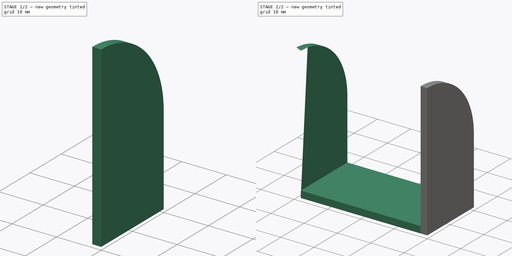
[diagram: build sequence overview — one tinted view per stage of 2, left to right]
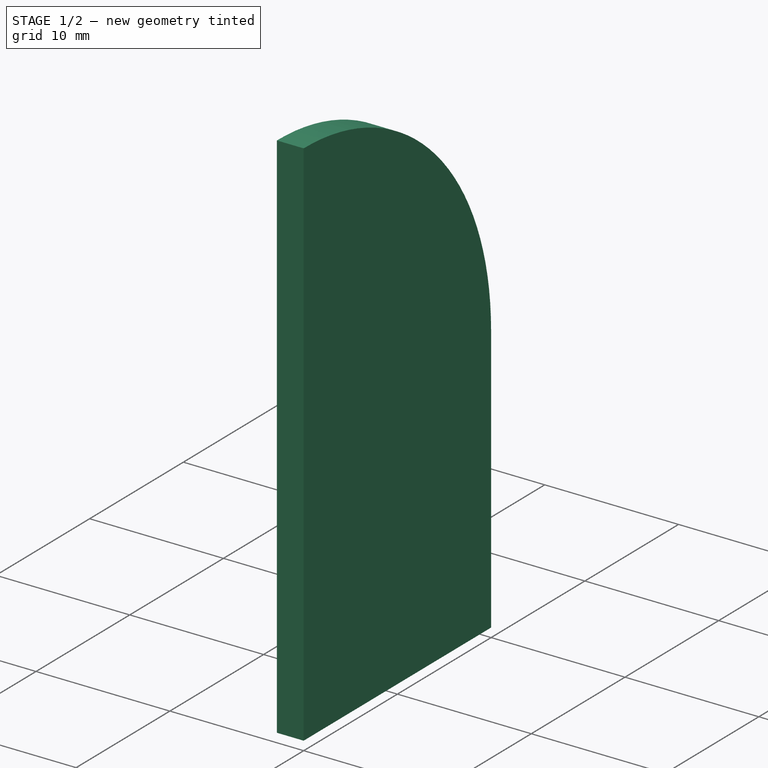
[diagram: stage 1 of 2 — iso view after this stage's code; geometry added in this stage tinted green]
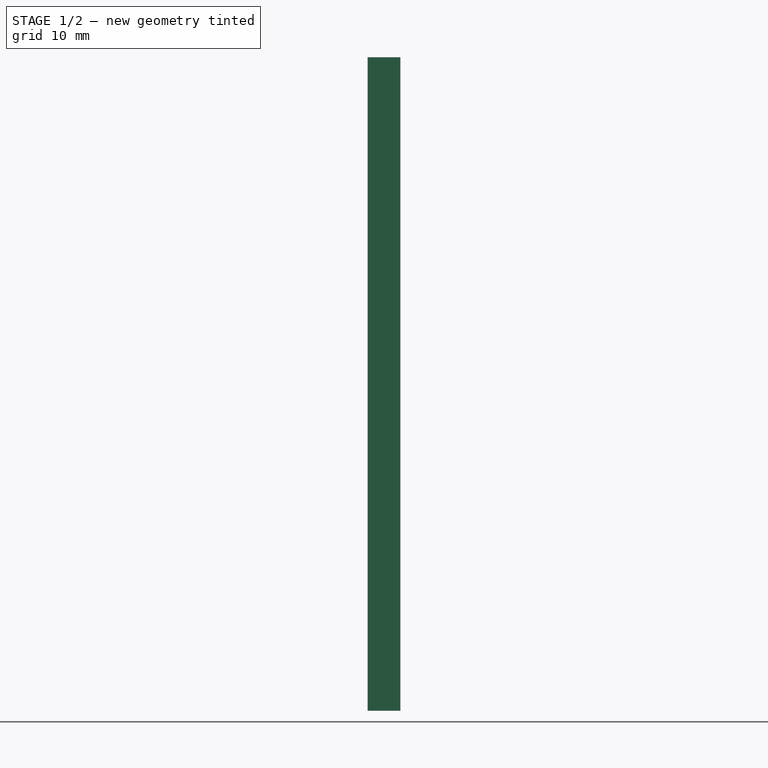
[diagram: stage 1 of 2 — front view after this stage's code; geometry added in this stage tinted green]
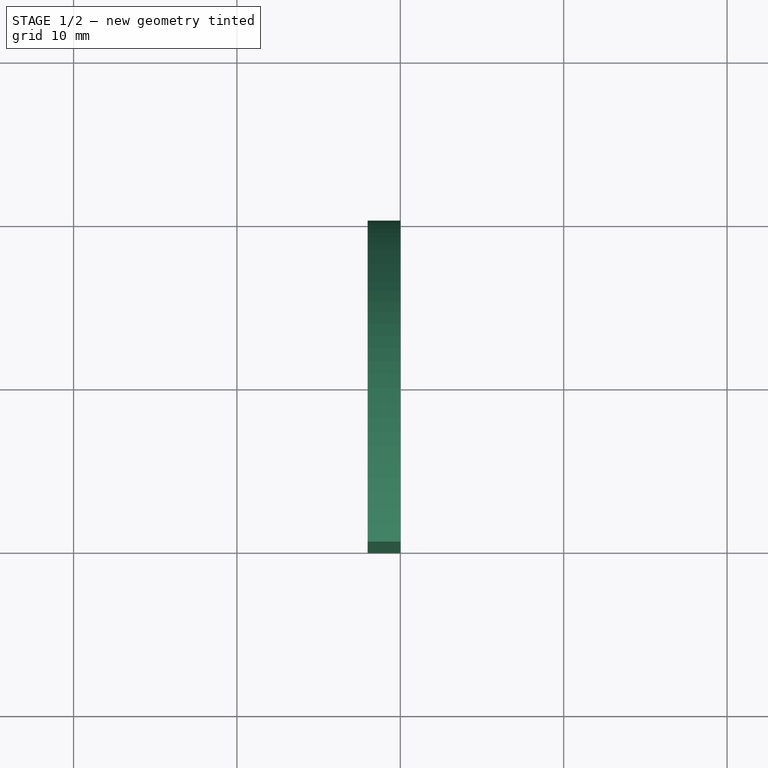
[diagram: stage 1 of 2 — top view after this stage's code; geometry added in this stage tinted green]
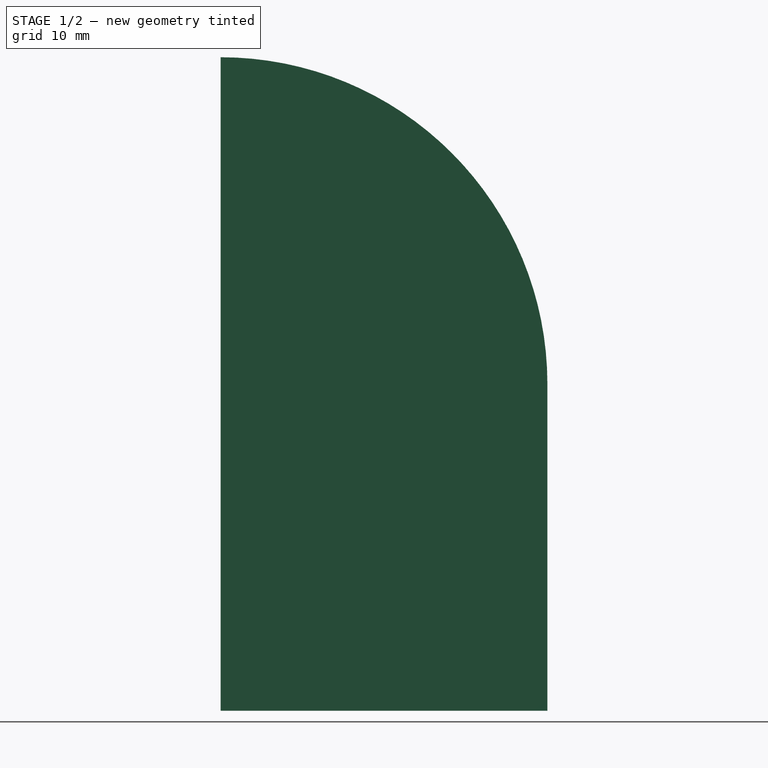
[diagram: stage 1 of 2 — right view after this stage's code; geometry added in this stage tinted green]
FCSTD DOCUMENT  (FreeCAD 0.18R4 (GitTag))
Label: FanMount
License: All rights reserved
LicenseURL: http://en.wikipedia.org/wiki/All_rights_reserved
objects: Sketcher::SketchObject×5, Part::Extrusion×3, Spreadsheet::Sheet×1, PartDesign::Pad×1, PartDesign::Body×1
note: 11 computed .brp shape members not serialized (recipe doc carries the construction recipe); baked Part::Feature solids carry a one-line shape summary decoded from their .brp

FEATURE [Sketcher::SketchObject] Sketch
  MapMode = 5
  Placement = pos=(0,0,0) rot=(1,0,0;1.5708rad)
  Support = -> [XZ_Plane]
  expr: Constraints[26] = parameters.FanOpeningOffset
  expr: Constraints[19] = parameters.ScrewToSide
  expr: Constraints[23] = parameters.ScrewToSide
  expr: Constraints[24] = parameters.ScrewToSide
  expr: Constraints[20] = parameters.ScrewToSide
  expr: Constraints[15] = Spreadsheet001.M3ThreadRadius
  expr: Constraints[14] = parameters.ScrewToSide
  expr: Constraints[22] = parameters.ScrewToSide
  expr: Constraints[9] = parameters.FaceWidth
  expr: Constraints[17] = Spreadsheet001.M3ThreadRadius
  expr: Constraints[18] = Spreadsheet001.M3ThreadRadius
  expr: Constraints[12] = parameters.FanOpeningRadius
  expr: Constraints[11] = parameters.FaceLength / 2
  expr: Constraints[10] = parameters.FaceWidth / 2
  expr: Constraints[13] = parameters.ScrewToSide
  expr: Constraints[25] = parameters.FanOpeningOffset
  expr: Constraints[21] = parameters.ScrewToSide
  expr: Constraints[16] = Spreadsheet001.M3ThreadRadius
  expr: Constraints[8] = parameters.FaceLength
  sketch-geometry (9):
    g0: LineSegment StartX=-20 StartY=20 StartZ=0 EndX=20 EndY=20 EndZ=0
    g1: LineSegment StartX=20 StartY=20 StartZ=0 EndX=20 EndY=-20 EndZ=0
    g2: LineSegment StartX=20 StartY=-20 StartZ=0 EndX=-20 EndY=-20 EndZ=0
    g3: LineSegment StartX=-20 StartY=-20 StartZ=0 EndX=-20 EndY=20 EndZ=0
    g4: Circle CenterX=0 CenterY=0 CenterZ=0 NormalX=0 NormalY=0 NormalZ=1 AngleXU=0 Radius=18
    g5: Circle CenterX=-16 CenterY=16 CenterZ=0 NormalX=0 NormalY=0 NormalZ=1 AngleXU=0 Radius=1.25
    g6: Circle CenterX=16 CenterY=16 CenterZ=0 NormalX=0 NormalY=0 NormalZ=1 AngleXU=0 Radius=1.25
    g7: Circle CenterX=16 CenterY=-16 CenterZ=0 NormalX=0 NormalY=0 NormalZ=1 AngleXU=0 Radius=1.25
    g8: Circle CenterX=-16 CenterY=-16 CenterZ=0 NormalX=0 NormalY=0 NormalZ=1 AngleXU=0 Radius=1.25
  constraints (27):
    c: Coincident(g0,g1)
    c: Coincident(g1,g2)
    c: Coincident(g2,g3)
    c: Coincident(g3,g0)
    c: Horizontal(g0)
    c: Horizontal(g2)
    c: Vertical(g1)
    c: Vertical(g3)
    c: DistanceY(g1,g0) = 40
    c: DistanceX(g0,g0) = 40
    c: DistanceX(g-1,g0) = 20
    c: DistanceY(g1,g-1) = 20
    c: Radius(g4) = 18
    c: DistanceY(g5,g0) = 4
    c: DistanceX(g0,g5) = 4
    c: Radius(g5) = 1.25
    c: Radius(g6) = 1.25
    c: Radius(g8) = 1.25
    c: Radius(g7) = 1.25
    c: DistanceX(g7,g1) = 4
    c: DistanceX(g6,g0) = 4
    c: DistanceX(g2,g8) = 4
    c: DistanceY(g1,g7) = 4
    c: DistanceY(g2,g8) = 4
    c: DistanceY(g6,g0) = 4
    c: DistanceX(g4,g-1) = 0
    c: DistanceY(g-1,g4) = 0
FEATURE [Spreadsheet::Sheet] Spreadsheet001  label="parameters"
  cells = A1=FaceWidth; B1(FaceWidth)==40mm; A2=FaceLength; B2(FaceLength)==40mm; A3=FanOpeningRadius; B3(FanOpeningRadius)==18mm; A4=M3ThreadRadius; B4(M3ThreadRadius)==1.25mm; A5=M3HeadWidth; B5(M3HeadWidth)==5.5mm; A6=M3HeadHeight; B6(M3HeadHeight)==3mm; A7=ScrewToSide; B7(ScrewToSide)==4mm; A8=FanOpeningOffset; B8(FanOpeningOffset)==0mm; A9=FanCatchDepth; B9(FanCatchDepth)==FaceLength / 2; A10=WallFanMountDepth; B10(WallFanMountDepth)==6mm; A11=WallMainDepth; B11(WallMainDepth)==2mm
FEATURE [PartDesign::Pad] Pad
  Length = 6
  Length2 = 100
  Placement = pos=(0,0,0) rot=(1,0,0;1.5708rad)
  Profile = -> Sketch
  Type = 0
  expr: Length = parameters.WallFanMountDepth
FEATURE [Sketcher::SketchObject] Sketch002
  MapMode = 5
  Placement = pos=(20,0,0) rot=(0.707107,0,0.707107;3.14159rad)
  Support = -> [Pad]
  expr: Constraints[11] = parameters.FanCatchDepth
  expr: Constraints[10] = parameters.FanCatchDepth
  sketch-geometry (4):
    g0: LineSegment StartX=20 StartY=-4.9e-15 StartZ=0 EndX=-20 EndY=-4.9e-15 EndZ=0
    g1: LineSegment StartX=-20 StartY=-20 StartZ=0 EndX=-3.6e-15 EndY=-20 EndZ=0
    g2: ArcOfCircle CenterX=0 CenterY=0 CenterZ=0 NormalX=0 NormalY=0 NormalZ=1 AngleXU=0 Radius=20 StartAngle=4.71239 EndAngle=6.28319
    g3: LineSegment StartX=-20 StartY=-4.9e-15 StartZ=0 EndX=-20 EndY=-20 EndZ=0
  constraints (12):
    c: PointOnObject(g0,g-1)
    c: Horizontal(g0)
    c: PointOnObject(g1,g-2)
    c: Horizontal(g1)
    c: Coincident(g2,g-1)
    c: Coincident(g2,g0)
    c: Coincident(g2,g1)
    c: Coincident(g3,g0)
    c: Coincident(g3,g1)
    c: Vertical(g3)
    c: DistanceX(g1,g1) = 20
    c: DistanceY(g3,g3) = 20
FEATURE [Part::Extrusion] Extrude004
  Base = -> Sketch002
  Dir = (1,0,-2e-16)
  DirMode = 2
  FaceMakerClass = Part::FaceMakerBullseye
  LengthFwd = -2
  LengthRev = 0
  Solid = true
  Symmetric = false
  expr: LengthFwd = -parameters.WallMainDepth
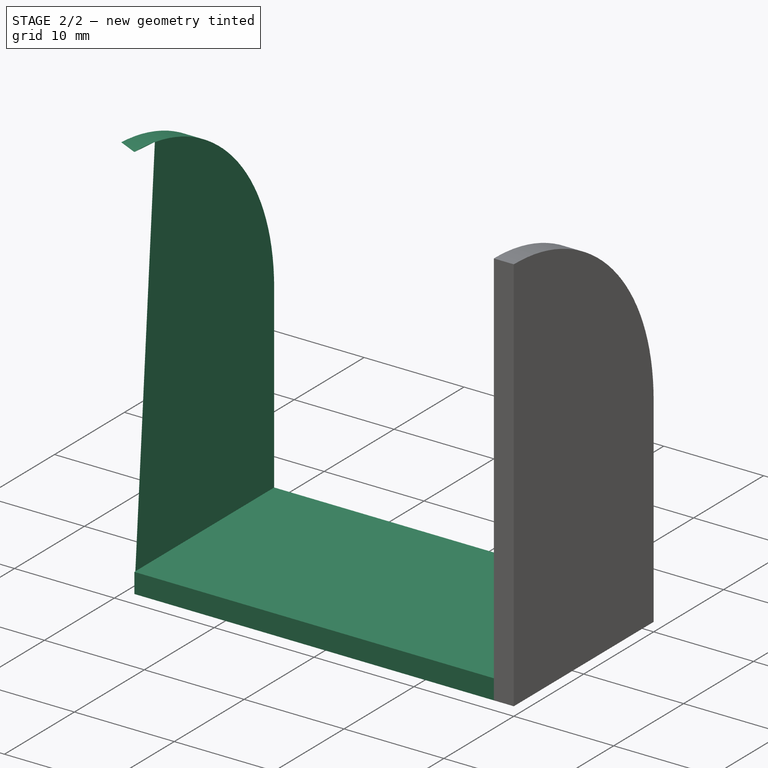
[diagram: stage 2 of 2 — iso view after this stage's code; geometry added in this stage tinted green]
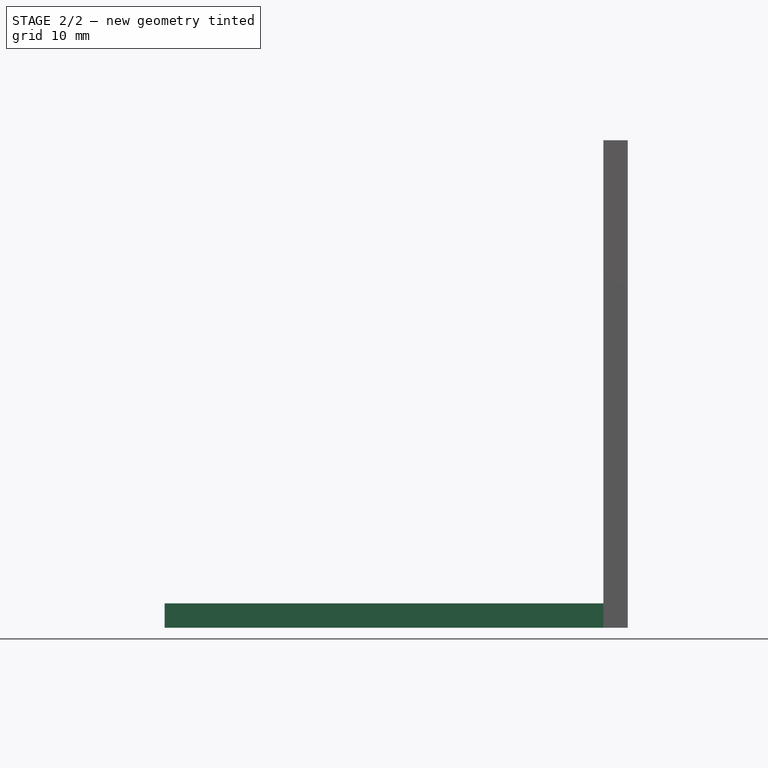
[diagram: stage 2 of 2 — front view after this stage's code; geometry added in this stage tinted green]
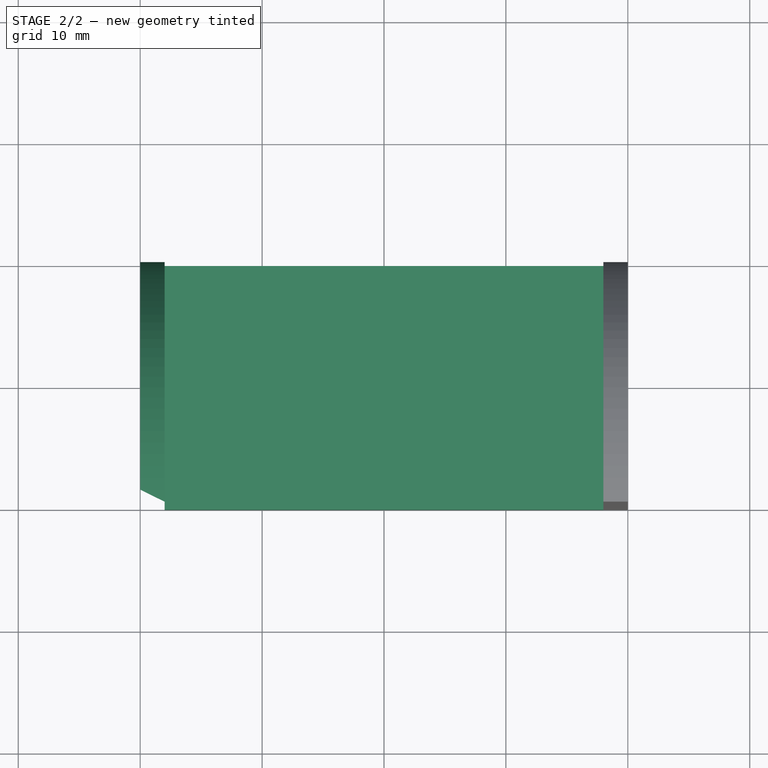
[diagram: stage 2 of 2 — top view after this stage's code; geometry added in this stage tinted green]
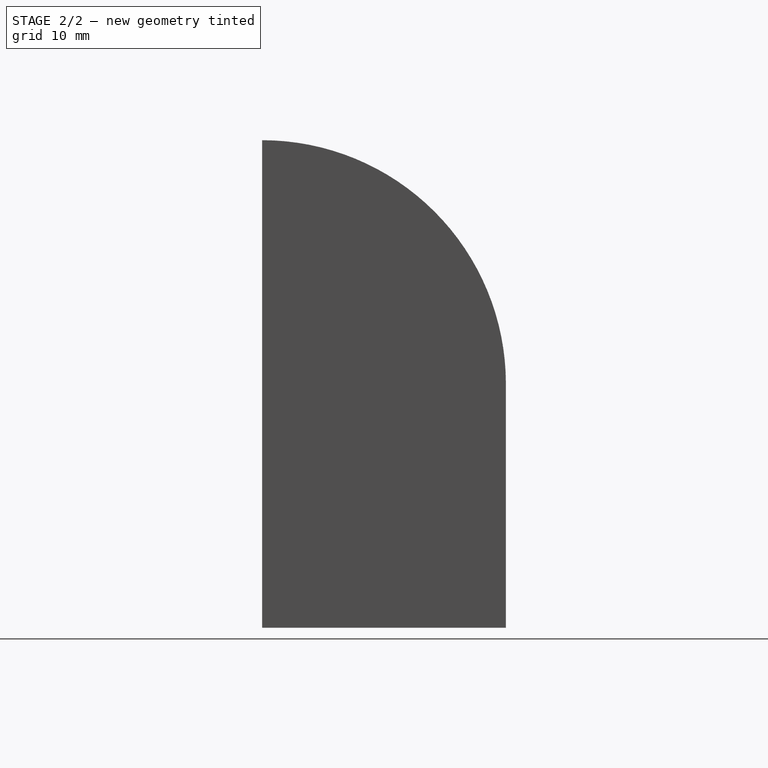
[diagram: stage 2 of 2 — right view after this stage's code; geometry added in this stage tinted green]
FEATURE [PartDesign::Body] Body  label="FanSide"
  Group = -> [Sketch,Pad]
  Origin = -> Origin
  Tip = -> Pad
FEATURE [Sketcher::SketchObject] Sketch001
  MapMode = 5
  Placement = pos=(-20,0,0) rot=(0.707107,0,-0.707107;3.14159rad)
  Support = -> [Pad]
  expr: Constraints[13] = parameters.FaceLength
  expr: Constraints[11] = parameters.FanCatchDepth
  expr: Constraints[12] = parameters.FanCatchDepth
  expr: Constraints[10] = parameters.FanCatchDepth
  sketch-geometry (6):
    g0: ArcOfCircle CenterX=0 CenterY=0 CenterZ=0 NormalX=0 NormalY=0 NormalZ=1 AngleXU=0 Radius=20 StartAngle=3.14159 EndAngle=4.71239
    g1: LineSegment StartX=-3.7e-15 StartY=-20 StartZ=0 EndX=20 EndY=-20 EndZ=0
    g2: LineSegment StartX=20 StartY=2.4e-15 StartZ=0 EndX=-20 EndY=2.4e-15 EndZ=0
    g3: LineSegment StartX=20 StartY=2.4e-15 StartZ=0 EndX=-20 EndY=2.4e-15 EndZ=0
    g4: LineSegment StartX=20 StartY=-20 StartZ=0 EndX=20 EndY=3.6e-15 EndZ=0
    g5: LineSegment StartX=20 StartY=2.4e-15 StartZ=0 EndX=-20 EndY=2.4e-15 EndZ=0
  constraints (16):
    c: Coincident(g0,g-1)
    c: Coincident(g1,g0)
    c: Horizontal(g1)
    c: Coincident(g2,g0)
    c: Coincident(g3,g2)
    c: Coincident(g3,g0)
    c: Coincident(g4,g1)
    c: Coincident(g4,g2)
    c: Coincident(g5,g2)
    c: Coincident(g5,g0)
    c: DistanceY(g1,g2) = 20
    c: DistanceX(g0,g1) = 20
    c: DistanceY(g0,g0) = 20
    c: DistanceX(g0,g2) = 40
    c: Vertical(g4)
    c: Horizontal(g2)
FEATURE [Part::Extrusion] Extrude001
  Base = -> Sketch001
  Dir = (-1,0,-2e-16)
  DirMode = 2
  FaceMakerClass = Part::FaceMakerBullseye
  LengthFwd = -2
  LengthRev = 0
  Solid = true
  Symmetric = false
  expr: LengthFwd = -parameters.WallMainDepth
FEATURE [Sketcher::SketchObject] Sketch003
  MapMode = 5
  Placement = pos=(0,4.4e-15,-20) rot=(1,0,0;3.14159rad)
  Support = -> [Pad]
  expr: Constraints[10] = parameters.FaceWidth - parameters.WallMainDepth * 2
  expr: Constraints[9] = parameters.FanCatchDepth
  sketch-geometry (4):
    g0: LineSegment StartX=-18 StartY=0 StartZ=0 EndX=18 EndY=0 EndZ=0
    g1: LineSegment StartX=18 StartY=0 StartZ=0 EndX=18 EndY=-20 EndZ=0
    g2: LineSegment StartX=18 StartY=-20 StartZ=0 EndX=-18 EndY=-20 EndZ=0
    g3: LineSegment StartX=-18 StartY=-20 StartZ=0 EndX=-18 EndY=0 EndZ=0
  constraints (11):
    c: Coincident(g0,g1)
    c: Coincident(g1,g2)
    c: Coincident(g2,g3)
    c: Coincident(g3,g0)
    c: Horizontal(g0)
    c: Horizontal(g2)
    c: Vertical(g1)
    c: Vertical(g3)
    c: PointOnObject(g0,g-1)
    c: DistanceY(g3,g3) = 20
    c: DistanceX(g0,g0) = 36
FEATURE [Part::Extrusion] Extrude
  Base = -> Sketch003
  Dir = (0,2e-16,-1)
  DirMode = 2
  FaceMakerClass = Part::FaceMakerBullseye
  LengthFwd = -2
  LengthRev = 0
  Solid = true
  Symmetric = false
  expr: LengthFwd = -parameters.WallMainDepth
FEATURE [Sketcher::SketchObject] Sketch004
  MapMode = 5
  Placement = pos=(18,-4e-16,-3.4e-15) rot=(0.57735,-0.57735,-0.57735;2.0944rad)
  Support = -> [Extrude004]
  expr: Constraints[10] = parameters.FanCatchDepth - parameters.WallMainDepth
  expr: Constraints[9] = parameters.FanCatchDepth
  sketch-geometry (5):
    g0: ArcOfCircle CenterX=0 CenterY=0 CenterZ=0 NormalX=0 NormalY=0 NormalZ=1 AngleXU=0 Radius=20 StartAngle=1.5708 EndAngle=3.14159
    g1: ArcOfCircle CenterX=0.23576 CenterY=0 CenterZ=0 NormalX=0 NormalY=0 NormalZ=1 AngleXU=0 Radius=18.0015 StartAngle=1.58389 EndAngle=3.14159
    g2: LineSegment StartX=-20 StartY=0 StartZ=0 EndX=-17.7658 EndY=0 EndZ=0
    g3: LineSegment StartX=0 StartY=20 StartZ=0 EndX=0 EndY=18 EndZ=0
    g4: LineSegment StartX=0 StartY=20 StartZ=0 EndX=0 EndY=18 EndZ=0
  constraints (14):
    c: Coincident(g0,g-1)
    c: PointOnObject(g0,g-1)
    c: PointOnObject(g1,g-1)
    c: Coincident(g2,g0)
    c: Coincident(g2,g1)
    c: Horizontal(g2)
    c: Coincident(g3,g0)
    c: Coincident(g3,g1)
    c: Vertical(g3)
    c: DistanceX(g0,g0) = 20
    c: DistanceX(g1,g0) = 18
    c: Coincident(g4,g0)
    c: Coincident(g4,g1)
    c: Vertical(g4)
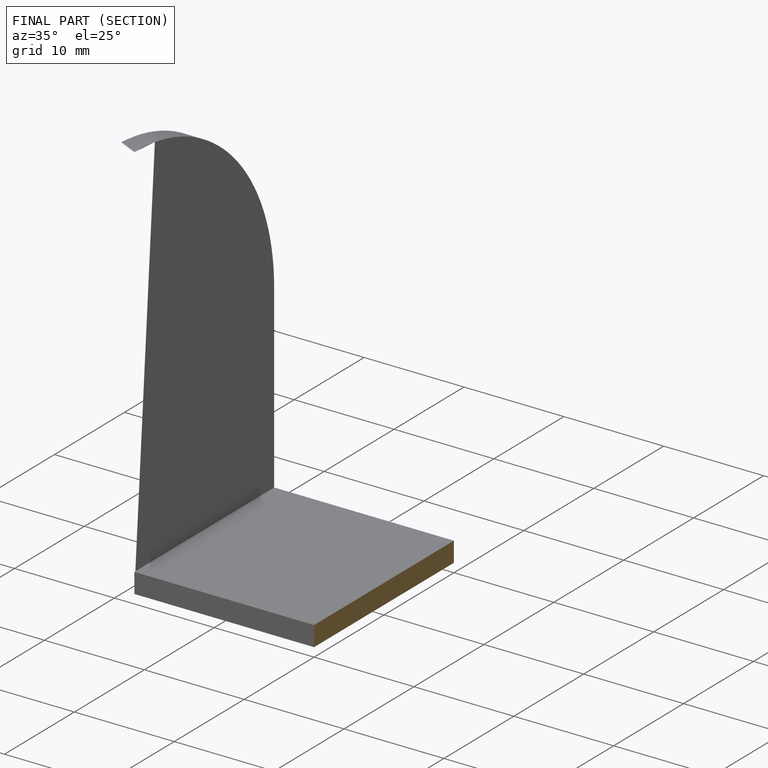
[diagram: finished part — half-section view (interior)]
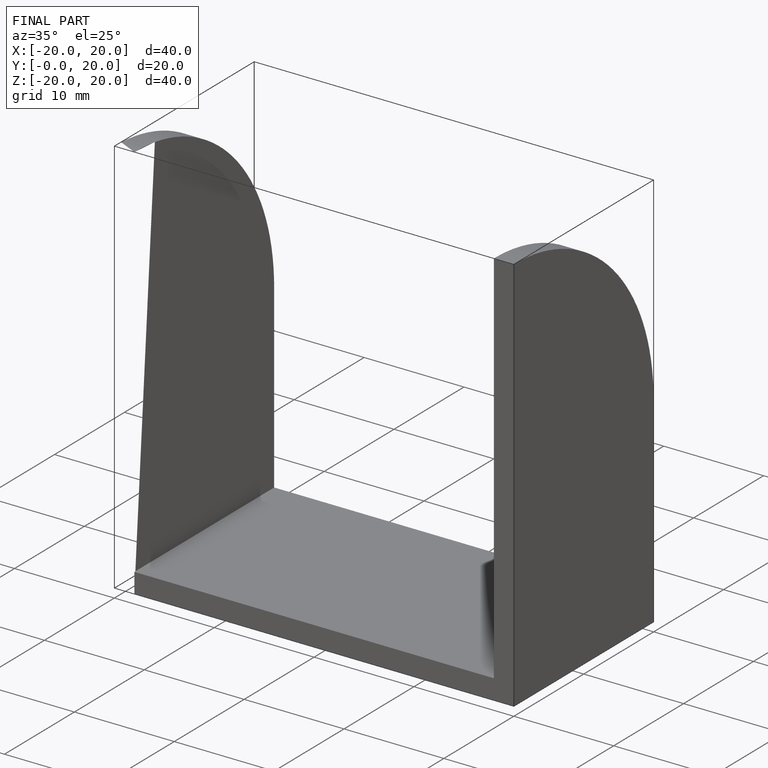
[diagram: finished part — iso view with bounding-box wireframe]
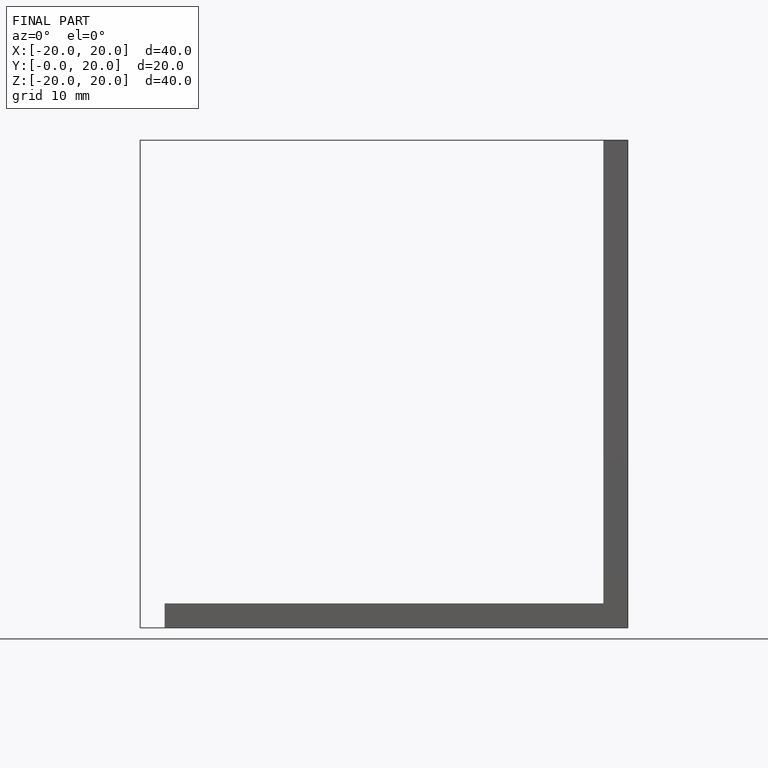
[diagram: finished part — front view with bounding-box wireframe]
